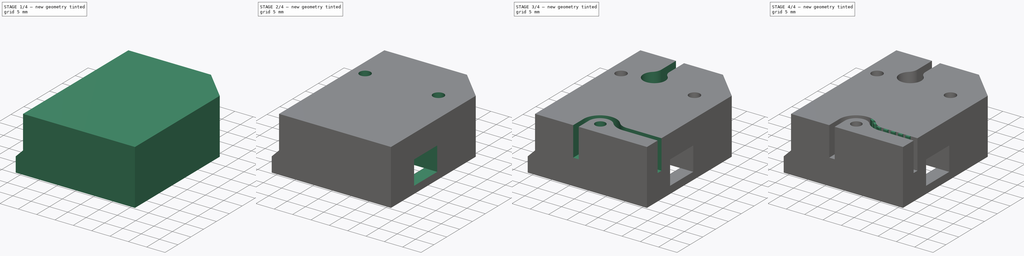
[diagram: build sequence overview — one tinted view per stage of 4, left to right]
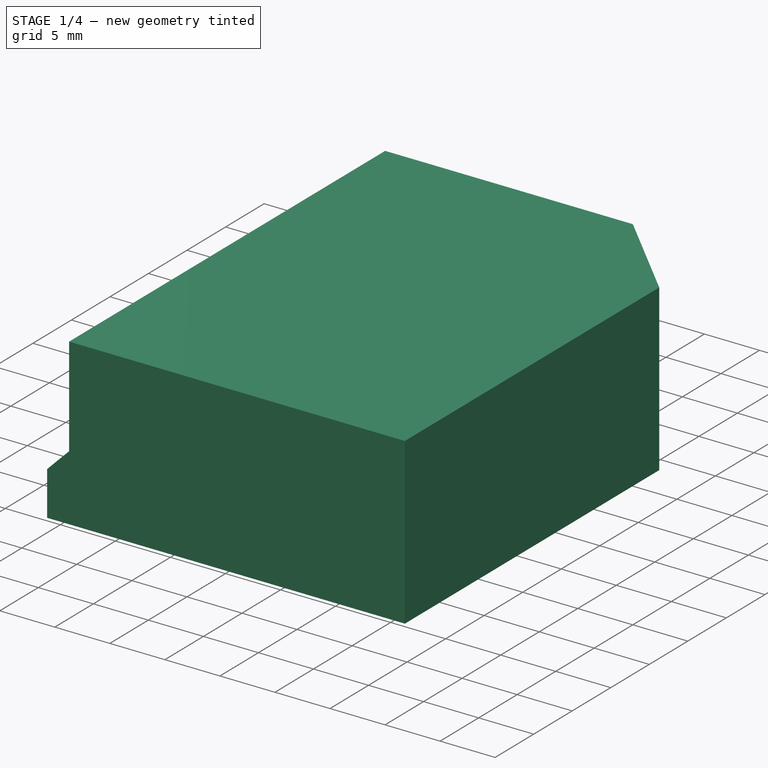
[diagram: stage 1 of 4 — iso view after this stage's code; geometry added in this stage tinted green]
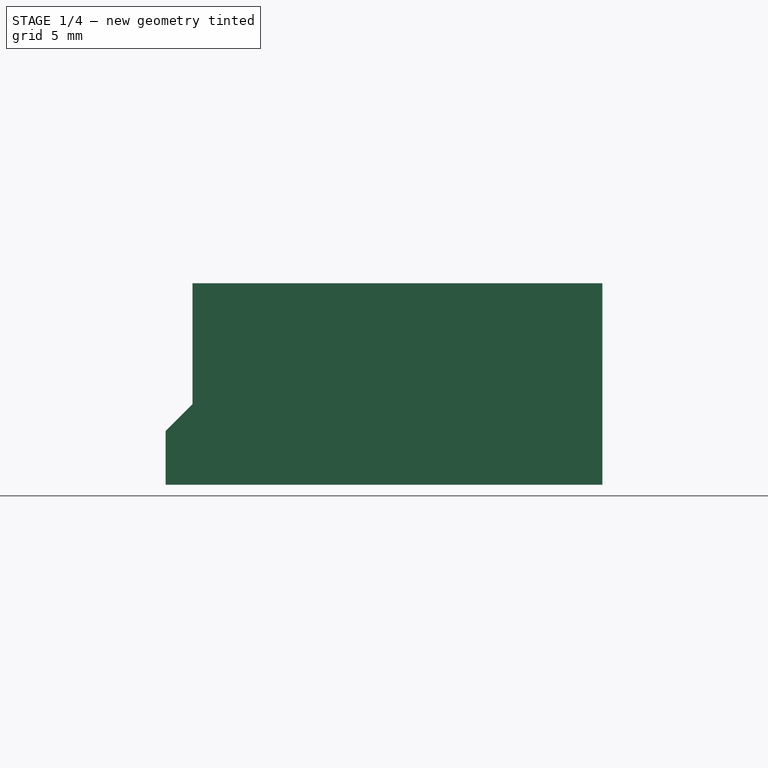
[diagram: stage 1 of 4 — front view after this stage's code; geometry added in this stage tinted green]
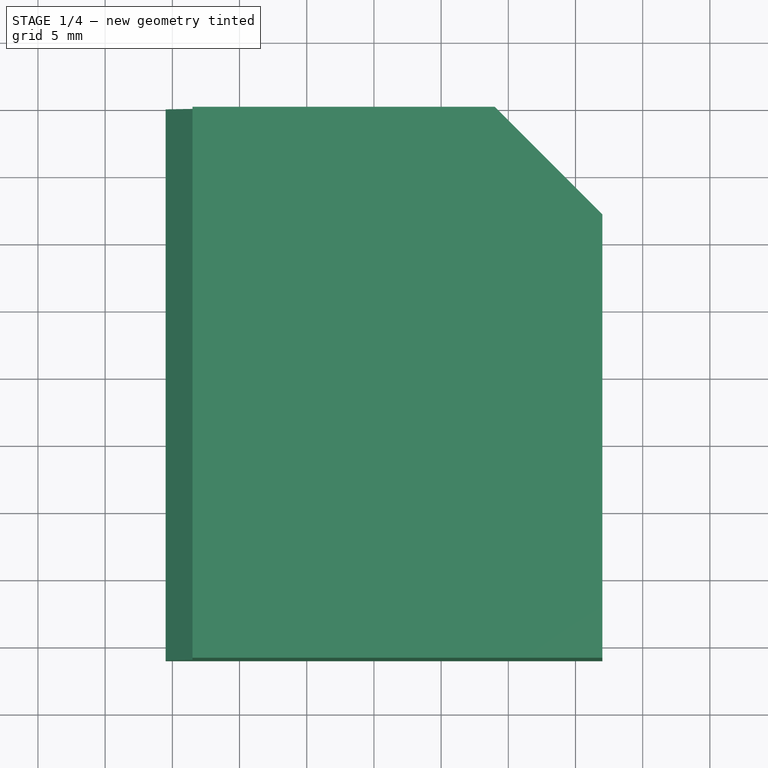
[diagram: stage 1 of 4 — top view after this stage's code; geometry added in this stage tinted green]
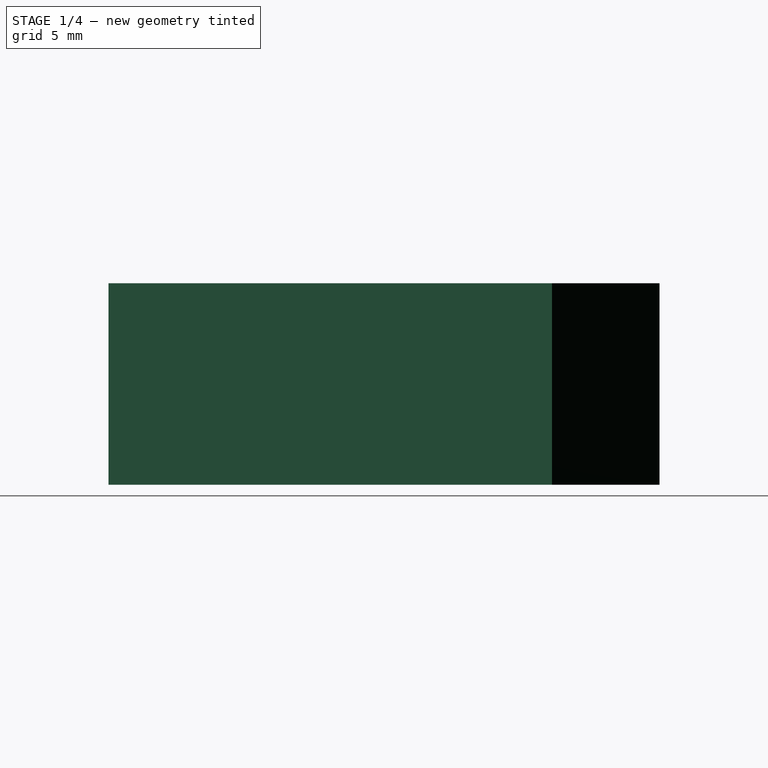
[diagram: stage 1 of 4 — right view after this stage's code; geometry added in this stage tinted green]
FCSTD DOCUMENT  (FreeCAD 0.19R)
Label: Yjoint_bolted_2
License: All rights reserved
LicenseURL: http://en.wikipedia.org/wiki/All_rights_reserved
objects: Sketcher::SketchObject×11, PartDesign::Pocket×8, PartDesign::Pad×2, PartDesign::Body×1
note: 32 computed .brp shape members not serialized (recipe doc carries the construction recipe); baked Part::Feature solids carry a one-line shape summary decoded from their .brp

FEATURE [Sketcher::SketchObject] Sketch
  FullyConstrained = false
  MapMode = 5
  Support = -> [XY_Plane]
  sketch-geometry (10):
    g0: LineSegment StartX=-15.5 StartY=20 StartZ=0 EndX=9 EndY=20 EndZ=0
    g1: LineSegment StartX=17 StartY=12 StartZ=0 EndX=17 EndY=-21 EndZ=0
    g2: LineSegment StartX=17 StartY=-21 StartZ=0 EndX=-15.5 EndY=-21 EndZ=0
    g3: LineSegment StartX=-15.5 StartY=-21 StartZ=0 EndX=-15.5 EndY=20 EndZ=0
    g4: LineSegment StartX=-37.8866 StartY=-3 StartZ=0 EndX=43.1928 EndY=-3 EndZ=0
    g5: LineSegment StartX=43.1928 StartY=-3 StartZ=0 EndX=43.1928 EndY=-12 EndZ=0
    g6: LineSegment StartX=43.1928 StartY=-12 StartZ=0 EndX=-37.8866 EndY=-12 EndZ=0
    g7: LineSegment StartX=-37.8866 StartY=-12 StartZ=0 EndX=-37.8866 EndY=-3 EndZ=0
    g8: LineSegment StartX=-54.8094 StartY=-7.5 StartZ=0 EndX=51.9087 EndY=-7.5 EndZ=0
    g9: LineSegment StartX=9 StartY=20 StartZ=0 EndX=17 EndY=12 EndZ=0
  constraints (26):
    c: Coincident(g1,g2)
    c: Coincident(g2,g3)
    c: Coincident(g3,g0)
    c: Horizontal(g2)
    c: Vertical(g1)
    c: Vertical(g3)
    c: Coincident(g4,g5)
    c: Coincident(g5,g6)
    c: Coincident(g6,g7)
    c: Coincident(g7,g4)
    c: Horizontal(g4)
    c: Horizontal(g6)
    c: Vertical(g5)
    c: Vertical(g7)
    c: DistanceY(g8) = -7.5
    c: Distance(g5) = 9
    c: Distance(g0,g4) = 23
    c: DistanceY(g1) = -21
    c: DistanceX(g2) = -15.5
    c: DistanceX(g1) = 17
    c: Symmetric(g5,g4,g8)
    c: Horizontal(g0)
    c: DistanceY(g9) = 12
    c: Angle(g9) = -0.785398
    c: Coincident(g1,g9)
    c: Coincident(g0,g9)
FEATURE [PartDesign::Pad] Pad
  Direction = (1,1,1)
  Length = 15
  Length2 = 100
  Profile = -> Sketch
  Type = 0
FEATURE [Sketcher::SketchObject] Sketch001  label="beltreleif"
  FullyConstrained = false
  MapMode = 5
  Placement = pos=(0,-21,0) rot=(1,0,0;1.5708rad)
  Support = -> [Pad]
  sketch-geometry (3):
    g0: LineSegment StartX=-23.4183 StartY=-3.91832 StartZ=0 EndX=-13.5 EndY=6 EndZ=0
    g1: LineSegment StartX=-13.5 StartY=6 StartZ=0 EndX=-13.5 EndY=30.99 EndZ=0
    g2: LineSegment StartX=-13.5 StartY=30.99 StartZ=0 EndX=-23.4183 EndY=-3.91832 EndZ=0
  constraints (8):
    c: Coincident(g0,g1)
    c: Vertical(g1)
    c: Coincident(g1,g2)
    c: Coincident(g2,g0)
    c: Angle(g0) = 0.785398
    c: DistanceX(g0) = -13.5
    c: Distance(g2) = 36.29
    c: DistanceY(g0) = 6
FEATURE [Sketcher::SketchObject] Sketch002  label="RailPocket"
  FullyConstrained = false
  MapMode = 5
  Placement = pos=(17,0,0) rot=(0.57735,0.57735,0.57735;2.0944rad)
  sketch-geometry (5):
    g0: LineSegment StartX=-12 StartY=8.5 StartZ=0 EndX=-3 EndY=8.5 EndZ=0
    g1: LineSegment StartX=-3 StartY=8.5 StartZ=0 EndX=-3 EndY=2 EndZ=0
    g2: LineSegment StartX=-3 StartY=2 StartZ=0 EndX=-12 EndY=2 EndZ=0
    g3: LineSegment StartX=-12 StartY=2 StartZ=0 EndX=-12 EndY=8.5 EndZ=0
    g4: LineSegment StartX=-7.5 StartY=9.53875 StartZ=0 EndX=-7.5 EndY=-20.3605 EndZ=0
  constraints (13):
    c: Coincident(g0,g1)
    c: Coincident(g1,g2)
    c: Coincident(g2,g3)
    c: Coincident(g3,g0)
    c: Horizontal(g0)
    c: Horizontal(g2)
    c: Vertical(g1)
    c: Vertical(g3)
    c: Distance(g0) = 9
    c: Symmetric(g0,g0,g4)
    c: DistanceX(g4) = -7.5
    c: DistanceY(g0) = 8.5
    c: Distance(g1) = 6.5
FEATURE [Sketcher::SketchObject] Sketch003  label="CarriageBolts"
  FullyConstrained = true
  MapMode = 5
  Placement = pos=(0,0,15) rot=(0,0,1;0rad)
  sketch-geometry (4):
    g0: Circle CenterX=10 CenterY=7.5 CenterZ=0 NormalX=0 NormalY=0 NormalZ=1 AngleXU=0 Radius=1.5
    g1: Circle CenterX=-10 CenterY=7.5 CenterZ=0 NormalX=0 NormalY=0 NormalZ=1 AngleXU=0 Radius=1.5
    g2: Circle CenterX=-10 CenterY=-7.5 CenterZ=0 NormalX=0 NormalY=0 NormalZ=1 AngleXU=0 Radius=1.5
    g3: Circle CenterX=10 CenterY=-7.5 CenterZ=0 NormalX=0 NormalY=0 NormalZ=1 AngleXU=0 Radius=1.5
  constraints (9):
    c: DistanceY(g0) = 7.5
    c: DistanceX(g0) = 10
    c: Symmetric(g1,g0,g-2)
    c: Symmetric(g0,g2,g-1)
    c: Symmetric(g1,g3,g-1)
    c: Diameter(g0) = 3
    c: Equal(g0,g1)
    c: Equal(g0,g2)
    c: Equal(g0,g3)
FEATURE [Sketcher::SketchObject] Sketch005  label="BottomPocket"
  FullyConstrained = true
  MapMode = 5
  Placement = pos=(0,0,0) rot=(1,0,0;3.14159rad)
  sketch-geometry (4):
    g0: LineSegment StartX=-13.5 StartY=17.5 StartZ=0 EndX=13.5 EndY=17.5 EndZ=0
    g1: LineSegment StartX=13.5 StartY=17.5 StartZ=0 EndX=13.5 EndY=-17.5 EndZ=0
    g2: LineSegment StartX=13.5 StartY=-17.5 StartZ=0 EndX=-13.5 EndY=-17.5 EndZ=0
    g3: LineSegment StartX=-13.5 StartY=-17.5 StartZ=0 EndX=-13.5 EndY=17.5 EndZ=0
  constraints (11):
    c: Coincident(g0,g1)
    c: Coincident(g1,g2)
    c: Coincident(g2,g3)
    c: Coincident(g3,g0)
    c: Horizontal(g2)
    c: Vertical(g1)
    c: Vertical(g3)
    c: Distance(g0) = 27
    c: Distance(g1) = 35
    c: Symmetric(g0,g2,g-1)
    c: Horizontal(g0)
FEATURE [Sketcher::SketchObject] Sketch008  label="printFilm"
  FullyConstrained = false
  MapMode = 5
  Placement = pos=(0,0,6) rot=(0,0,1;0rad)
  sketch-geometry (8):
    g0: LineSegment StartX=-7.42355 StartY=14.214 StartZ=0 EndX=2.97442 EndY=14.214 EndZ=0
    g1: LineSegment StartX=2.97442 StartY=14.214 StartZ=0 EndX=2.97442 EndY=6.02841 EndZ=0
    g2: LineSegment StartX=2.97442 StartY=6.02841 StartZ=0 EndX=-7.42355 EndY=6.02841 EndZ=0
    g3: LineSegment StartX=-7.42355 StartY=6.02841 StartZ=0 EndX=-7.42355 EndY=14.214 EndZ=0
    g4: LineSegment StartX=-5.71547 StartY=-12.14 StartZ=0 EndX=6.63722 EndY=-12.14 EndZ=0
    g5: LineSegment StartX=6.63722 StartY=-12.14 StartZ=0 EndX=6.63722 EndY=-18.9745 EndZ=0
    g6: LineSegment StartX=6.63722 StartY=-18.9745 StartZ=0 EndX=-5.71547 EndY=-18.9745 EndZ=0
    g7: LineSegment StartX=-5.71547 StartY=-18.9745 StartZ=0 EndX=-5.71547 EndY=-12.14 EndZ=0
  constraints (16):
    c: Coincident(g0,g1)
    c: Coincident(g1,g2)
    c: Coincident(g2,g3)
    c: Coincident(g3,g0)
    c: Horizontal(g0)
    c: Horizontal(g2)
    c: Vertical(g1)
    c: Vertical(g3)
    c: Coincident(g4,g5)
    c: Coincident(g5,g6)
    c: Coincident(g6,g7)
    c: Coincident(g7,g4)
    c: Horizontal(g4)
    c: Horizontal(g6)
    c: Vertical(g5)
    c: Vertical(g7)
FEATURE [Sketcher::SketchObject] Sketch012
  FullyConstrained = true
  MapMode = 5
  Placement = pos=(0,0,8.5) rot=(1,0,0;3.14159rad)
  sketch-geometry (2):
    g0: Circle CenterX=10 CenterY=7.5 CenterZ=0 NormalX=0 NormalY=0 NormalZ=1 AngleXU=0 Radius=3.5
    g1: Circle CenterX=-10 CenterY=7.5 CenterZ=0 NormalX=0 NormalY=0 NormalZ=1 AngleXU=0 Radius=3.5
  constraints (6):
    c: Diameter(g0) = 7
    c: Equal(g0,g1)
    c: DistanceY(g1) = 7.5
    c: DistanceY(g0) = 7.5
    c: DistanceX(g1) = -10
    c: DistanceX(g0) = 10
FEATURE [PartDesign::Pocket] Pocket
  BaseFeature = -> Pad
  Length = 5
  Length2 = 100
  Profile = -> Sketch001
  Type = 1
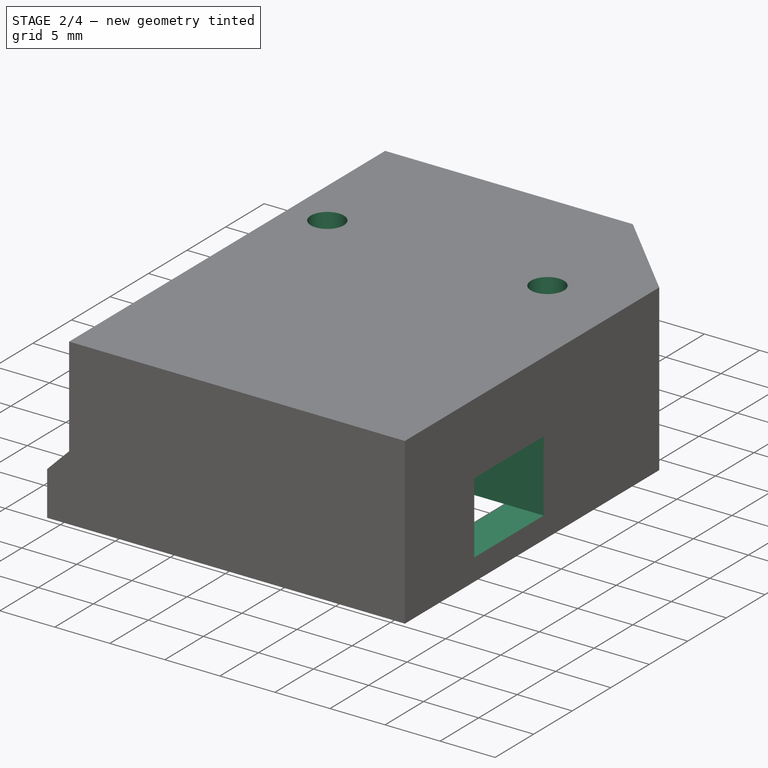
[diagram: stage 2 of 4 — iso view after this stage's code; geometry added in this stage tinted green]
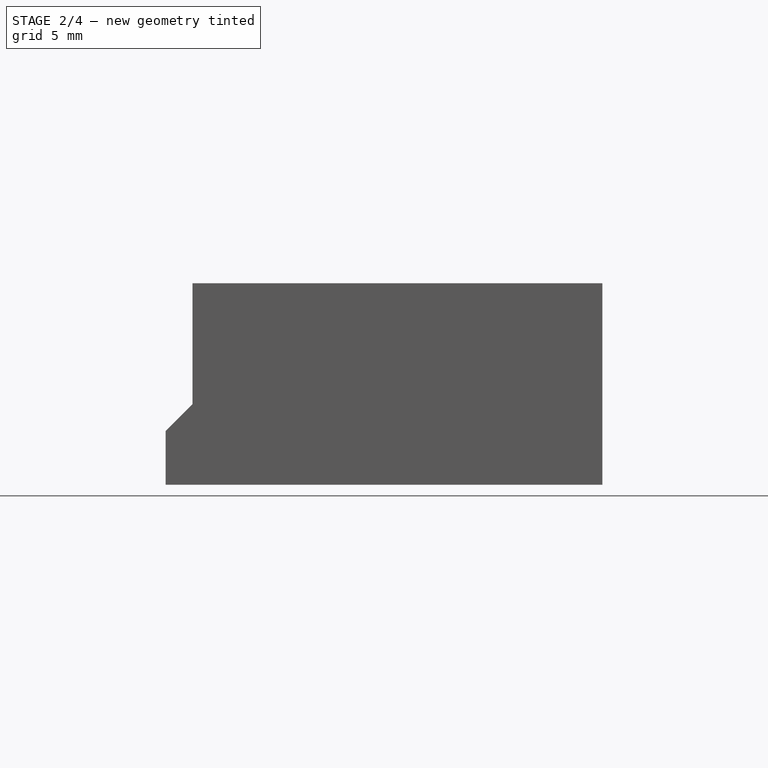
[diagram: stage 2 of 4 — front view after this stage's code; geometry added in this stage tinted green]
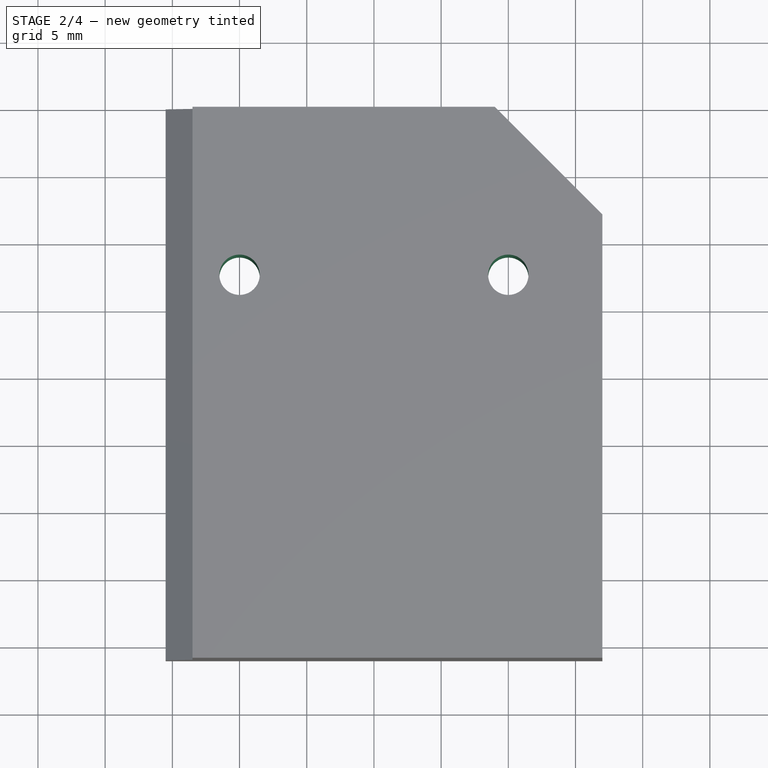
[diagram: stage 2 of 4 — top view after this stage's code; geometry added in this stage tinted green]
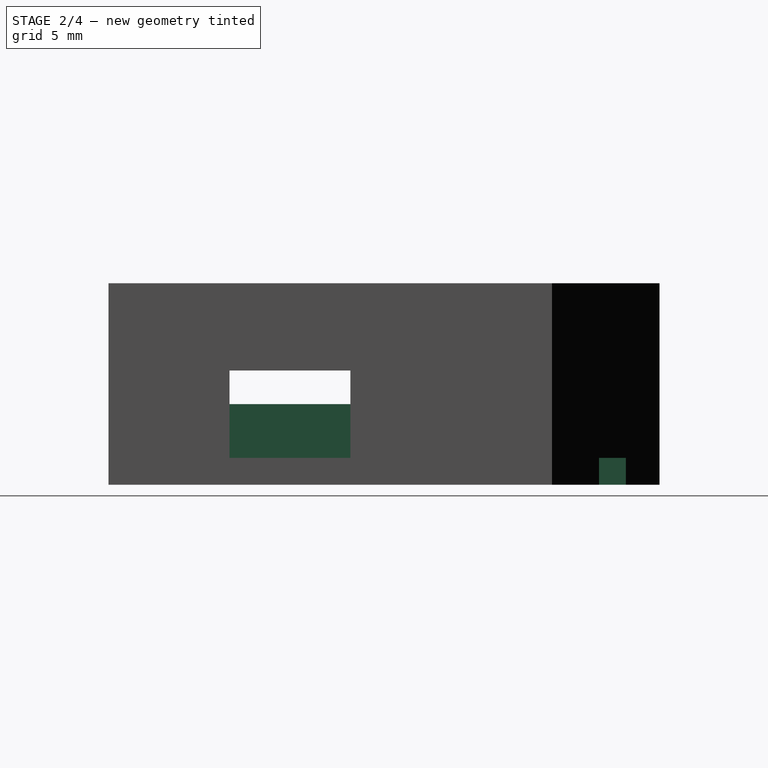
[diagram: stage 2 of 4 — right view after this stage's code; geometry added in this stage tinted green]
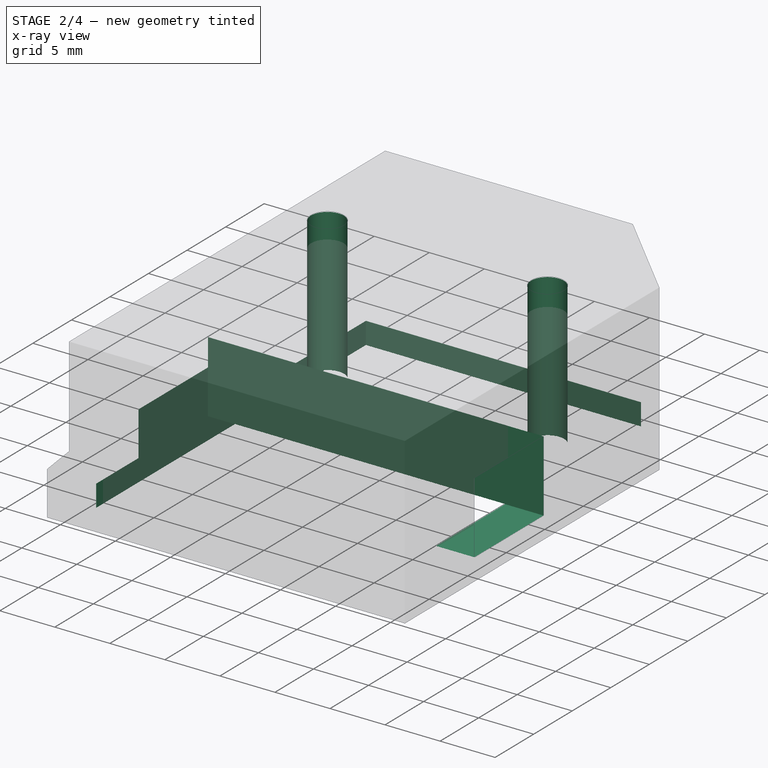
[diagram: stage 2 of 4 — x-ray composite at the iso view; earlier geometry ghosted, this stage's added geometry solid]
FEATURE [PartDesign::Pocket] Pocket001
  BaseFeature = -> Pocket
  Length = 30.5
  Length2 = 100
  Profile = -> Sketch002
  Type = 0
FEATURE [PartDesign::Pocket] Pocket002
  BaseFeature = -> Pocket001
  Length = 5
  Length2 = 100
  Profile = -> Sketch003
  Type = 1
FEATURE [PartDesign::Pocket] Pocket003
  BaseFeature = -> Pocket002
  Length = 2
  Length2 = 100
  Profile = -> Sketch005
  Type = 0
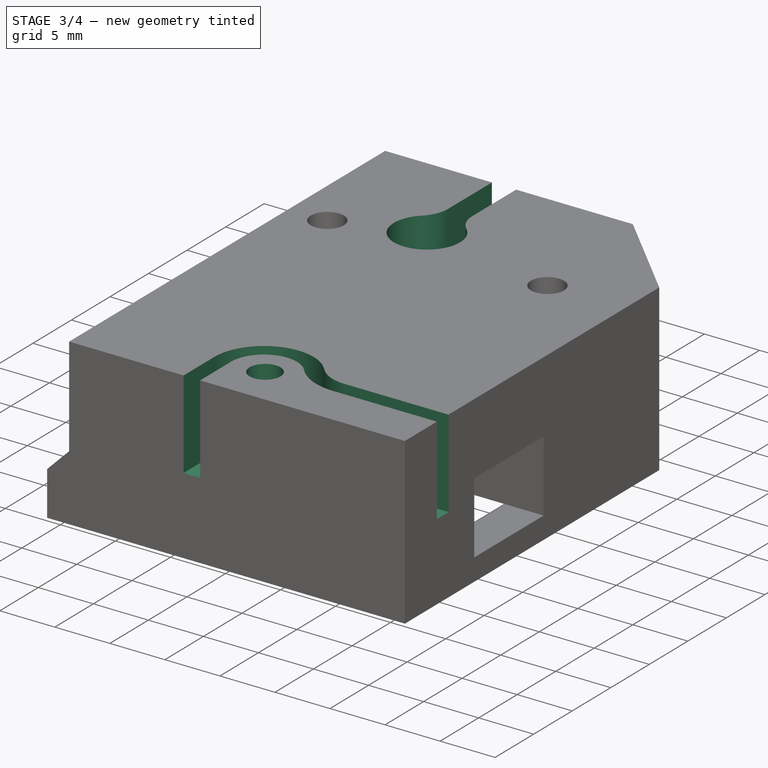
[diagram: stage 3 of 4 — iso view after this stage's code; geometry added in this stage tinted green]
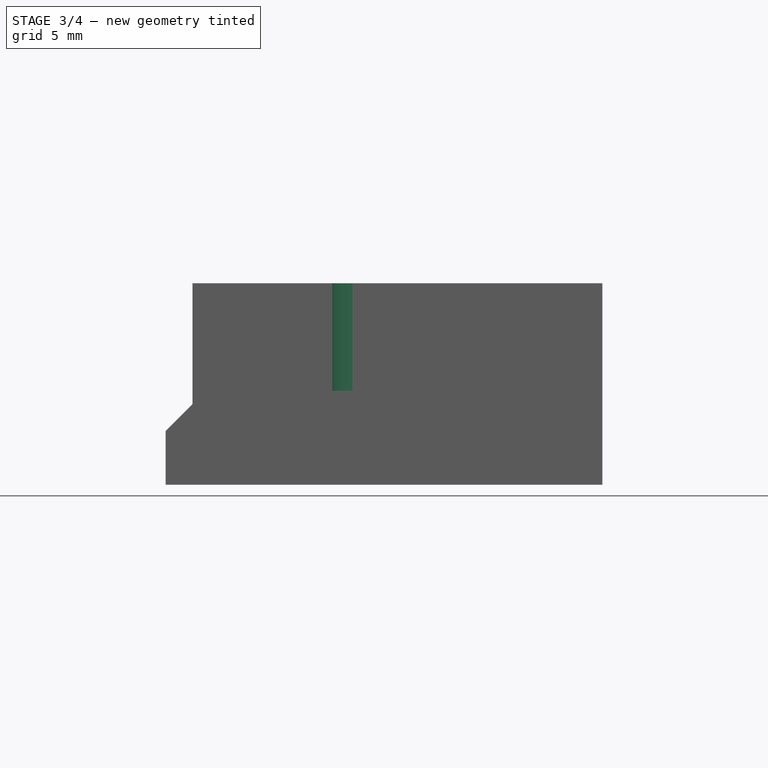
[diagram: stage 3 of 4 — front view after this stage's code; geometry added in this stage tinted green]
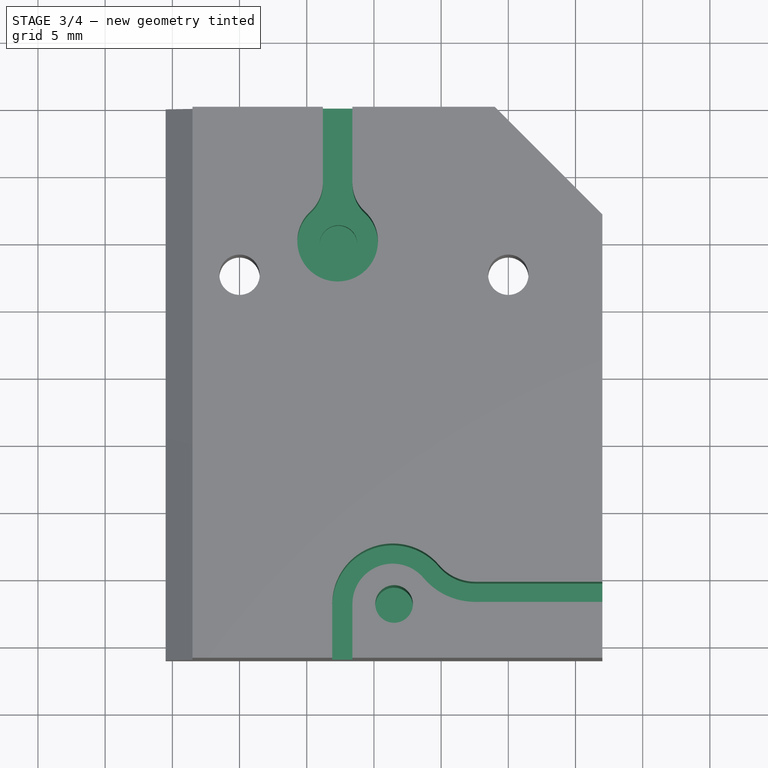
[diagram: stage 3 of 4 — top view after this stage's code; geometry added in this stage tinted green]
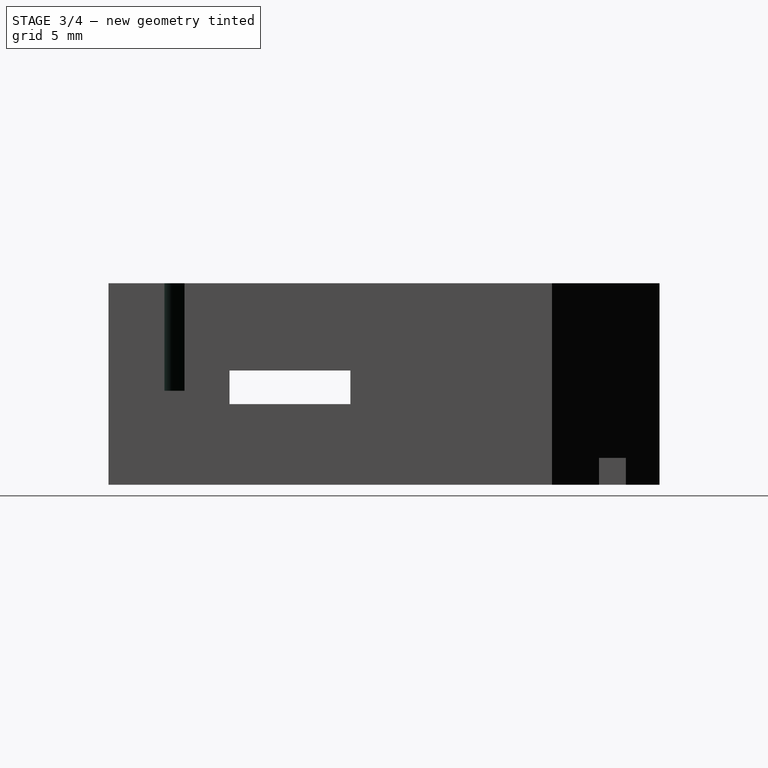
[diagram: stage 3 of 4 — right view after this stage's code; geometry added in this stage tinted green]
FEATURE [Sketcher::SketchObject] Sketch009  label="BeltTrap1"
  FullyConstrained = true
  MapMode = 5
  Placement = pos=(0,0,15) rot=(0,0,1;0rad)
  Support = -> [Pocket003]
  sketch-geometry (12):
    g0: ArcOfCircle CenterX=1.4 CenterY=-17 CenterZ=0 NormalX=0 NormalY=0 NormalZ=1 AngleXU=0 Radius=3 StartAngle=0.70304 EndAngle=3.14159
    g1: ArcOfCircle CenterX=1.4 CenterY=-17 CenterZ=0 NormalX=0 NormalY=0 NormalZ=1 AngleXU=0 Radius=4.5 StartAngle=0.70304 EndAngle=3.14159
    g2: LineSegment StartX=-3.1 StartY=-17 StartZ=0 EndX=-1.6 EndY=-17 EndZ=0
    g3: LineSegment StartX=-1.6 StartY=-17 StartZ=0 EndX=-1.6 EndY=-22 EndZ=0
    g4: LineSegment StartX=-1.6 StartY=-22 StartZ=0 EndX=-3.1 EndY=-22 EndZ=0
    g5: LineSegment StartX=-3.1 StartY=-22 StartZ=0 EndX=-3.1 EndY=-17 EndZ=0
    g6: LineSegment StartX=-4.78 StartY=-17 StartZ=0 EndX=6 EndY=-17 EndZ=0
    g7: ArcOfCircle CenterX=7.5411 CenterY=-11.7954 CenterZ=0 NormalX=0 NormalY=0 NormalZ=1 AngleXU=0 Radius=3.54989 StartAngle=3.84463 EndAngle=4.71239
    g8: ArcOfCircle CenterX=7.5411 CenterY=-11.7954 CenterZ=0 NormalX=0 NormalY=0 NormalZ=1 AngleXU=0 Radius=5.04989 StartAngle=3.84463 EndAngle=4.71239
    g9: LineSegment StartX=21.71 StartY=-15.3453 StartZ=0 EndX=7.5411 EndY=-15.3453 EndZ=0
    g10: LineSegment StartX=21.71 StartY=-16.8453 StartZ=0 EndX=7.5411 EndY=-16.8453 EndZ=0
    g11: LineSegment StartX=21.71 StartY=-15.3453 StartZ=0 EndX=21.71 EndY=-16.8453 EndZ=0
  constraints (34):
    c: Coincident(g1,g0)
    c: Distance(g0,g0) = 3
    c: DistanceX(g0) = 1.4
    c: Coincident(g2,g1)
    c: Coincident(g2,g0)
    c: Tangent(g0,g3) = -1.5708
    c: Coincident(g3,g4)
    c: Horizontal(g4)
    c: Coincident(g4,g5)
    c: Coincident(g5,g1)
    c: Vertical(g5)
    c: Distance(g4) = 1.5
    c: Distance(g3) = 5
    c: Horizontal(g6)
    c: PointOnObject(g0,g6)
    c: PointOnObject(g1,g6)
    c: Parallel(g3,g5)
    c: DistanceY(g6) = -17
    c: Distance(g6) = 10.78
    c: DistanceX(g6) = -4.78
    c: Coincident(g8,g7)
    c: Tangent(g7,g1) = 1.5708
    c: Tangent(g8,g0) = 1.5708
    c: Tangent(g7,g9) = 1.5708
    c: Coincident(g7,g9)
    c: Tangent(g8,g10) = 1.5708
    c: Parallel(g10,g9)
    c: Horizontal(g9)
    c: Coincident(g11,g9)
    c: Coincident(g11,g10)
    c: Vertical(g11)
    c: DistanceX(g9) = 21.71
    c: DistanceX(g8) = 7.5411
    c: DistanceY(g8) = -16.8453
FEATURE [PartDesign::Pocket] Pocket004
  BaseFeature = -> Pocket003
  Length = 8
  Length2 = 100
  Profile = -> Sketch009
  Type = 0
FEATURE [Sketcher::SketchObject] Sketch007  label="clampHole"
  FullyConstrained = false
  MapMode = 5
  Placement = pos=(0,0,15) rot=(0,0,1;0rad)
  Support = -> [Pocket004]
  sketch-geometry (2):
    g0: Circle CenterX=-2.63724 CenterY=9.92805 CenterZ=0 NormalX=0 NormalY=0 NormalZ=1 AngleXU=0 Radius=1.4
    g1: Circle CenterX=1.5 CenterY=-17 CenterZ=0 NormalX=0 NormalY=0 NormalZ=1 AngleXU=0 Radius=1.4
  constraints (4):
    c: Diameter(g0) = 2.8
    c: Diameter(g1) = 2.8
    c: DistanceY(g1) = -17
    c: DistanceX(g1) = 1.5
FEATURE [PartDesign::Pocket] Pocket005
  BaseFeature = -> Pocket004
  Length = 11
  Length2 = 100
  Profile = -> Sketch007
  Type = 0
FEATURE [Sketcher::SketchObject] Sketch004  label="MotorSideBeltClamp"
  FullyConstrained = false
  MapMode = 5
  Placement = pos=(0,0,15) rot=(0,0,1;0rad)
  Support = -> [Pocket005]
  sketch-geometry (13):
    g0: LineSegment StartX=-3.8 StartY=-19.337 StartZ=0 EndX=-3.8 EndY=-36 EndZ=0
    g1: LineSegment StartX=-3.8 StartY=-36 StartZ=0 EndX=-1.6 EndY=-36 EndZ=0
    g2: LineSegment StartX=-1.6 StartY=-36 StartZ=0 EndX=-1.6 EndY=-19.337 EndZ=0
    g3: ArcOfCircle CenterX=-2.7 CenterY=-15 CenterZ=0 NormalX=0 NormalY=0 NormalZ=1 AngleXU=0 Radius=3 StartAngle=5.45738 EndAngle=10.2506
    g4: ArcOfCircle CenterX=1.3 CenterY=-19.337 CenterZ=0 NormalX=0 NormalY=0 NormalZ=1 AngleXU=0 Radius=2.9 StartAngle=2.31579 EndAngle=3.14159
    g5: ArcOfCircle CenterX=-6.7 CenterY=-19.337 CenterZ=0 NormalX=0 NormalY=0 NormalZ=1 AngleXU=0 Radius=2.9 StartAngle=6e-16 EndAngle=0.825804
    g6: LineSegment StartX=-2.7 StartY=-15 StartZ=0 EndX=-2.7 EndY=-40.8271 EndZ=0
    g7: LineSegment StartX=-3.8 StartY=23.44 StartZ=0 EndX=-1.6 EndY=23.44 EndZ=0
    g8: LineSegment StartX=-1.6 StartY=23.44 StartZ=0 EndX=-1.6 EndY=14.337 EndZ=0
    g9: LineSegment StartX=-3.8 StartY=23.44 StartZ=0 EndX=-3.8 EndY=14.337 EndZ=0
    g10: ArcOfCircle CenterX=-2.7 CenterY=10 CenterZ=0 NormalX=0 NormalY=0 NormalZ=1 AngleXU=0 Radius=3 StartAngle=2.31579 EndAngle=7.10899
    g11: ArcOfCircle CenterX=1.3 CenterY=14.337 CenterZ=0 NormalX=0 NormalY=0 NormalZ=1 AngleXU=0 Radius=2.9 StartAngle=3.14159 EndAngle=3.9674
    g12: ArcOfCircle CenterX=-6.7 CenterY=14.337 CenterZ=0 NormalX=0 NormalY=0 NormalZ=1 AngleXU=0 Radius=2.9 StartAngle=5.45738 EndAngle=6.28319
  constraints (32):
    c: Vertical(g0)
    c: Coincident(g0,g1)
    c: Horizontal(g1)
    c: Coincident(g1,g2)
    c: Tangent(g4,g3) = 1.5708
    c: Tangent(g4,g2) = 1.5708
    c: Tangent(g5,g3) = 1.5708
    c: Tangent(g5,g0) = 1.5708
    c: Coincident(g6,g3)
    c: Symmetric(g1,g0,g6)
    c: Symmetric(g2,g0,g6)
    c: DistanceX(g3) = -2.7
    c: Diameter(g3) = 6
    c: Distance(g4,g5) = 8
    c: Distance(g1) = 2.2
    c: DistanceY(g3) = -15
    c: DistanceY(g1) = -36
    c: Coincident(g7,g8)
    c: Vertical(g8)
    c: Coincident(g7,g9)
    c: Tangent(g11,g10) = 1.5708
    c: Diameter(g10) = 6
    c: Tangent(g11,g8) = -1.5708
    c: Tangent(g12,g10) = 1.5708
    c: Tangent(g12,g9) = 1.5708
    c: Symmetric(g7,g7,g6)
    c: Distance(g7) = 2.2
    c: PointOnObject(g10,g6)
    c: Symmetric(g8,g9,g6)
    c: Distance(g11,g12) = 8
    c: DistanceY(g10) = 10
    c: DistanceY(g7) = 23.44
FEATURE [PartDesign::Pocket] Pocket006
  BaseFeature = -> Pocket005
  Length = 8
  Length2 = 100
  Profile = -> Sketch004
  Type = 0
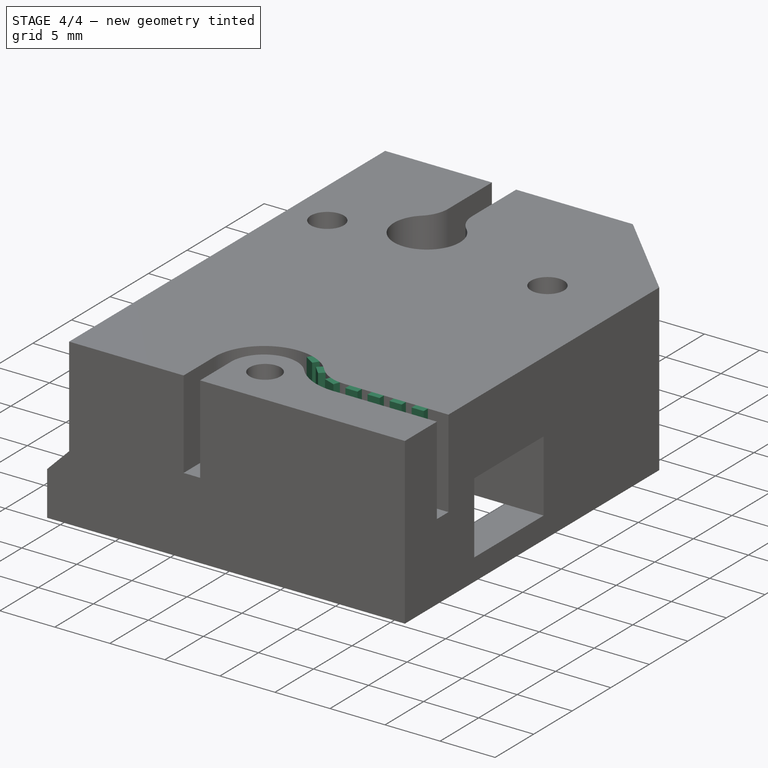
[diagram: stage 4 of 4 — iso view after this stage's code; geometry added in this stage tinted green]
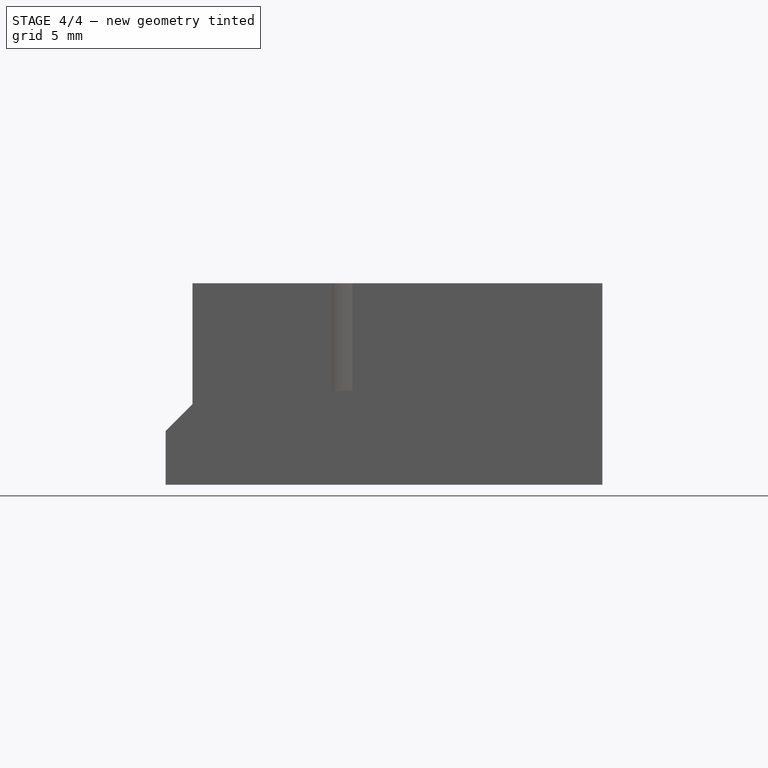
[diagram: stage 4 of 4 — front view after this stage's code; geometry added in this stage tinted green]
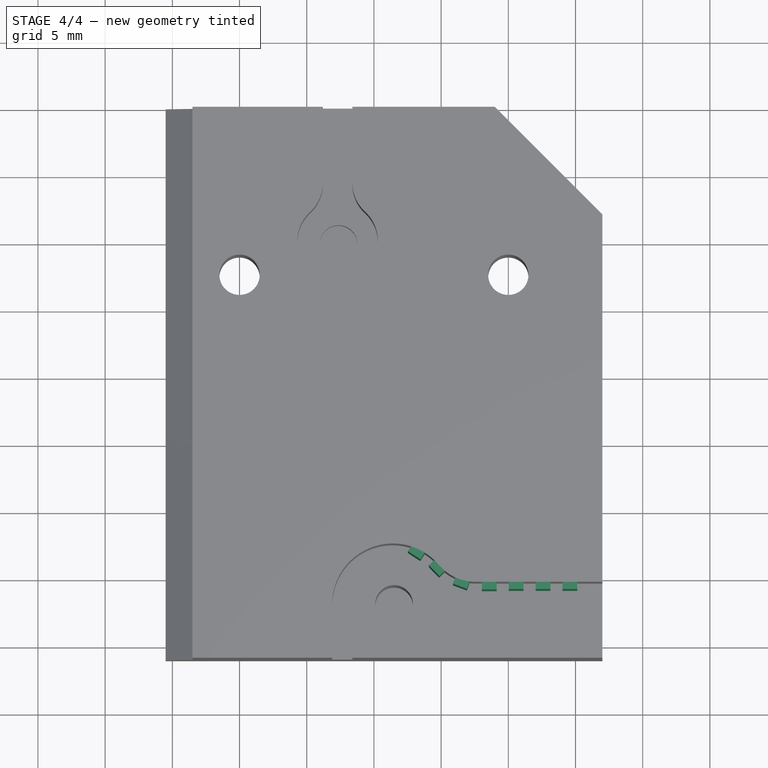
[diagram: stage 4 of 4 — top view after this stage's code; geometry added in this stage tinted green]
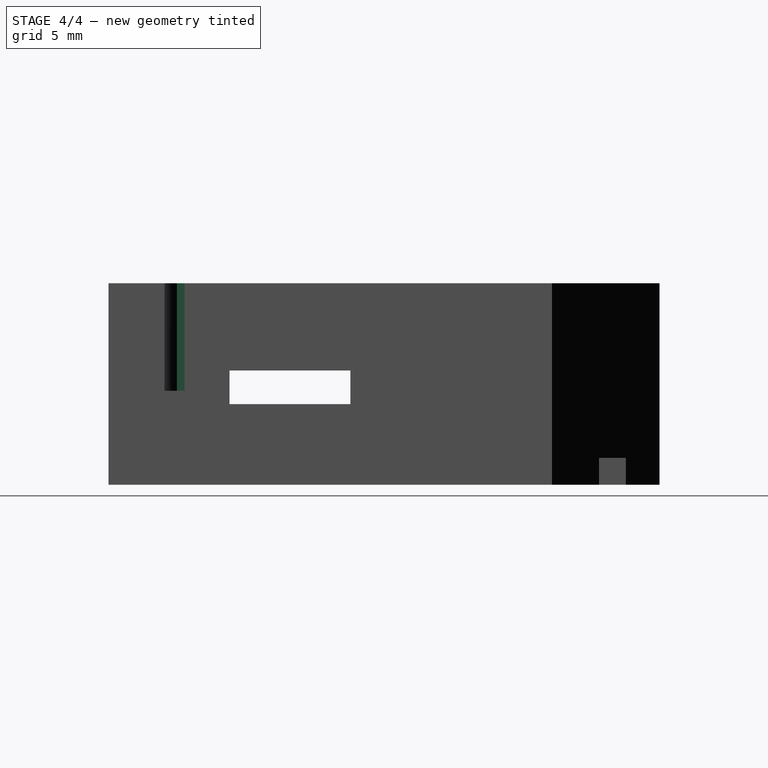
[diagram: stage 4 of 4 — right view after this stage's code; geometry added in this stage tinted green]
FEATURE [Sketcher::SketchObject] Sketch010  label="BeltTeeth"
  FullyConstrained = false
  MapMode = 5
  Placement = pos=(0,0,15) rot=(0,0,1;0rad)
  Support = -> [Pocket006]
  sketch-geometry (36):
    g0: Circle CenterX=3.28997 CenterY=-12.9135 CenterZ=0 NormalX=0 NormalY=0 NormalZ=1 AngleXU=0 Radius=0.625
    g1: Circle CenterX=4.8706 CenterY=-14.1389 CenterZ=0 NormalX=0 NormalY=0 NormalZ=1 AngleXU=0 Radius=0.625
    g2: Circle CenterX=6.59026 CenterY=-15.1601 CenterZ=0 NormalX=0 NormalY=0 NormalZ=1 AngleXU=0 Radius=0.625
    g3: Circle CenterX=8.58014 CenterY=-15.361 CenterZ=0 NormalX=0 NormalY=0 NormalZ=1 AngleXU=0 Radius=0.625
    g4: Circle CenterX=10.58 CenterY=-15.3374 CenterZ=0 NormalX=0 NormalY=0 NormalZ=1 AngleXU=0 Radius=0.625
    g5: Circle CenterX=12.58 CenterY=-15.3373 CenterZ=0 NormalX=0 NormalY=0 NormalZ=1 AngleXU=0 Radius=0.625
    g6: Circle CenterX=14.58 CenterY=-15.3369 CenterZ=0 NormalX=0 NormalY=0 NormalZ=1 AngleXU=0 Radius=0.625
    g7: LineSegment StartX=14.03 StartY=-14.7869 StartZ=0 EndX=14.03 EndY=-15.8869 EndZ=0
    g8: LineSegment StartX=14.03 StartY=-15.8869 StartZ=0 EndX=15.13 EndY=-15.8869 EndZ=0
    g9: LineSegment StartX=15.13 StartY=-15.8869 StartZ=0 EndX=15.13 EndY=-14.7869 EndZ=0
    g10: LineSegment StartX=15.13 StartY=-14.7869 StartZ=0 EndX=14.03 EndY=-14.7869 EndZ=0
    g11: Circle CenterX=14.58 CenterY=-15.3369 CenterZ=0 NormalX=0 NormalY=0 NormalZ=1 AngleXU=0 Radius=0.25124
    g12: LineSegment StartX=12.03 StartY=-14.7873 StartZ=0 EndX=12.03 EndY=-15.8873 EndZ=0
    g13: LineSegment StartX=12.03 StartY=-15.8873 StartZ=0 EndX=13.13 EndY=-15.8873 EndZ=0
    g14: LineSegment StartX=13.13 StartY=-15.8873 StartZ=0 EndX=13.13 EndY=-14.7873 EndZ=0
    g15: LineSegment StartX=13.13 StartY=-14.7873 StartZ=0 EndX=12.03 EndY=-14.7873 EndZ=0
    g16: LineSegment StartX=10.03 StartY=-14.7874 StartZ=0 EndX=11.13 EndY=-14.7874 EndZ=0
    g17: LineSegment StartX=11.13 StartY=-14.7874 StartZ=0 EndX=11.13 EndY=-15.8874 EndZ=0
    g18: LineSegment StartX=11.13 StartY=-15.8874 StartZ=0 EndX=10.03 EndY=-15.8874 EndZ=0
    g19: LineSegment StartX=10.03 StartY=-15.8874 StartZ=0 EndX=10.03 EndY=-14.7874 EndZ=0
    g20: LineSegment StartX=9.13014 StartY=-14.811 StartZ=0 EndX=9.13014 EndY=-15.911 EndZ=0
    g21: LineSegment StartX=9.13014 StartY=-15.911 StartZ=0 EndX=8.03014 EndY=-15.911 EndZ=0
    g22: LineSegment StartX=8.03014 StartY=-15.911 StartZ=0 EndX=8.03014 EndY=-14.811 EndZ=0
    g23: LineSegment StartX=8.03014 StartY=-14.811 StartZ=0 EndX=9.13014 EndY=-14.811 EndZ=0
    g24: LineSegment StartX=6.91605 StartY=-15.8664 StartZ=0 EndX=7.29656 EndY=-14.8343 EndZ=0
    g25: LineSegment StartX=7.29656 StartY=-14.8343 StartZ=0 EndX=6.26447 EndY=-14.4538 EndZ=0
    g26: LineSegment StartX=6.26447 StartY=-14.4538 StartZ=0 EndX=5.88396 EndY=-15.4859 EndZ=0
    g27: LineSegment StartX=5.88396 StartY=-15.4859 StartZ=0 EndX=6.91605 EndY=-15.8664 EndZ=0
    g28: LineSegment StartX=4.09296 StartY=-14.1223 StartZ=0 EndX=4.85395 EndY=-14.9166 EndZ=0
    g29: LineSegment StartX=4.85395 StartY=-14.9166 StartZ=0 EndX=5.64824 EndY=-14.1556 EndZ=0
    g30: LineSegment StartX=5.64824 StartY=-14.1556 StartZ=0 EndX=4.88725 EndY=-13.3613 EndZ=0
    g31: LineSegment StartX=4.88725 StartY=-13.3613 StartZ=0 EndX=4.09296 EndY=-14.1223 EndZ=0
    g32: LineSegment StartX=2.5289 StartY=-13.0741 StartZ=0 EndX=3.45055 EndY=-13.6746 EndZ=0
    g33: LineSegment StartX=3.45055 StartY=-13.6746 StartZ=0 EndX=4.05103 EndY=-12.7529 EndZ=0
    g34: LineSegment StartX=4.05103 StartY=-12.7529 StartZ=0 EndX=3.12938 EndY=-12.1525 EndZ=0
    g35: LineSegment StartX=3.12938 StartY=-12.1525 StartZ=0 EndX=2.5289 EndY=-13.0741 EndZ=0
  constraints (87):
    c: Distance(g0,g1) = 2
    c: Distance(g1,g2) = 2
    c: Distance(g2,g3) = 2
    c: Distance(g4,g5) = 2
    c: Distance(g4,g3) = 2
    c: Distance(g6,g5) = 2
    c: DistanceX(g6) = 14.58
    c: Diameter(g6) = 1.25
    c: Diameter(g0) = 1.25
    c: Equal(g0, g1-g5) x5
    c: Coincident(g7,g8)
    c: Coincident(g8,g9)
    c: Coincident(g9,g10)
    c: Coincident(g10,g7)
    c: Equal(g8,g9)
    c: Equal(g10,g9)
    c: Equal(g10,g7)
    c: Perpendicular(g10,g7)
    c: Symmetric(g7,g9,g11)
    c: Horizontal(g8)
    c: Coincident(g11,g6)
    c: Vertical(g12)
    c: Coincident(g12,g13)
    c: Horizontal(g13)
    c: Coincident(g13,g14)
    c: Coincident(g14,g15)
    c: Coincident(g15,g12)
    c: Equal(g12,g15)
    c: Symmetric(g12,g14,g5)
    c: Horizontal(g16)
    c: Coincident(g16,g17)
    c: Coincident(g17,g18)
    c: Coincident(g18,g19)
    c: Coincident(g19,g16)
    c: Vertical(g19)
    c: Coincident(g20,g21)
    c: Coincident(g21,g22)
    c: Coincident(g22,g23)
    c: Coincident(g23,g20)
    c: Coincident(g24,g25)
    c: Coincident(g25,g26)
    c: Coincident(g26,g27)
    c: Coincident(g27,g24)
    c: Coincident(g28,g29)
    c: Coincident(g29,g30)
    c: Coincident(g30,g31)
    c: Coincident(g31,g28)
    c: Coincident(g32,g33)
    c: Coincident(g33,g34)
    c: Coincident(g34,g35)
    c: Coincident(g35,g32)
    c: Equal(g33,g34)
    c: Equal(g34,g32)
    c: Equal(g32,g35)
    c: Equal(g35,g31)
    c: Equal(g31,g28)
    c: Equal(g28,g29)
    c: Equal(g29,g30)
    c: Equal(g30,g26)
    c: Equal(g26,g27)
    c: Equal(g27,g24)
    c: Equal(g24,g25)
    c: Equal(g25,g21)
    c: Equal(g21,g20)
    c: Equal(g20,g23)
    c: Equal(g23,g22)
    c: Equal(g22,g18)
    c: Equal(g18,g19)
    c: Equal(g19,g17)
    c: Equal(g17,g16)
    c: Equal(g16,g15)
    c: Equal(g12,g10)
    c: Perpendicular(g20,g21)
    c: Perpendicular(g24,g27)
    c: Perpendicular(g29,g28)
    c: Perpendicular(g33,g32)
    c: Symmetric(g32,g33,g0)
    c: Symmetric(g26,g24,g2)
    c: Symmetric(g21,g20,g3)
    c: Symmetric(g28,g29,g1)
    c: Horizontal(g21)
    c: Symmetric(g17,g16,g4)
    c: Perpendicular(g14,g13)
    c: Perpendicular(g12,g15)
    c: Distance(g10) = 1.1
    c: DistanceX(g1) = 4.8706
    c: DistanceY(g1) = -14.1389
FEATURE [PartDesign::Pad] Pad001
  BaseFeature = -> Pocket006
  Direction = (1,1,1)
  Length = 8
  Length2 = 100
  Profile = -> Sketch010
  Reversed = true
  Type = 0
FEATURE [PartDesign::Pocket] Pocket007
  BaseFeature = -> Pad001
  Length = 2
  Length2 = 100
  Profile = -> Sketch012
  Type = 0
FEATURE [PartDesign::Body] Body
  Group = -> [Sketch,Pad,Sketch001,Sketch002,Sketch003,Sketch004,Sketch005,Sketch007,Sketch008,Sketch009,Sketch010,Sketch012,Pocket,Pocket001,Pocket002,Pocket003,Pocket004,Pocket005,Pocket006,Pad001,Pocket007]
  Origin = -> Origin
  Tip = -> Pocket007
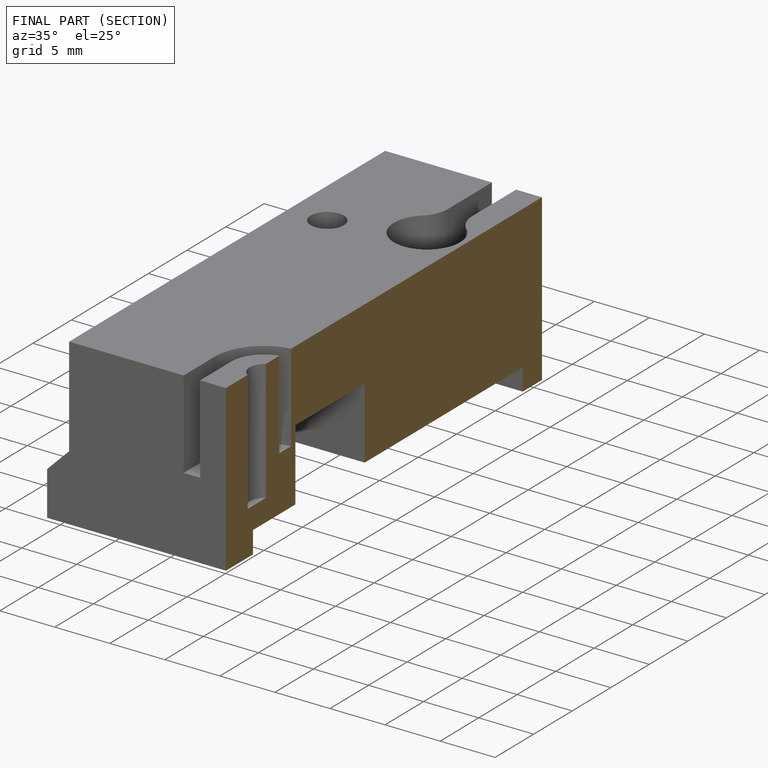
[diagram: finished part — half-section view (interior)]
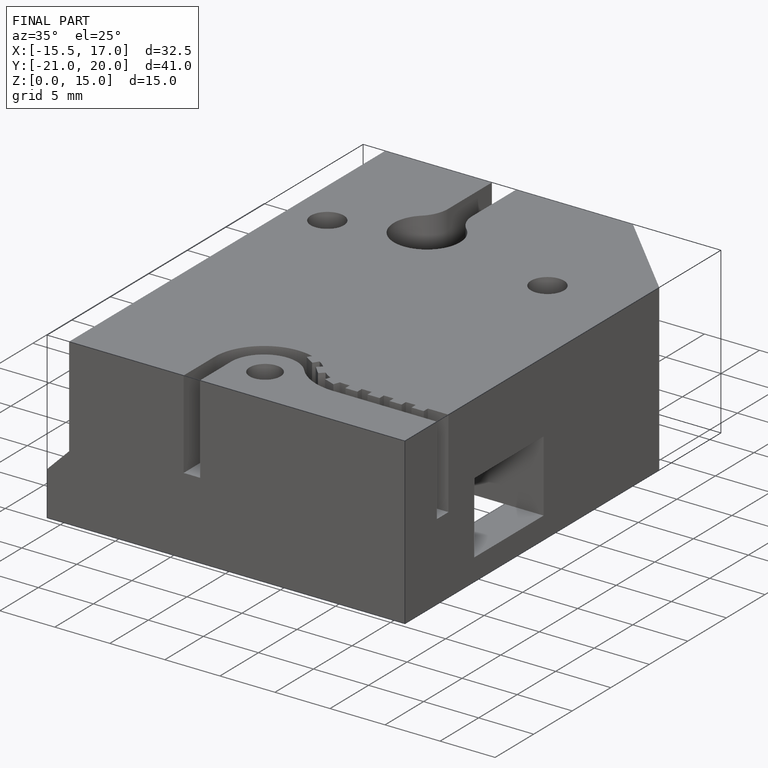
[diagram: finished part — iso view with bounding-box wireframe]
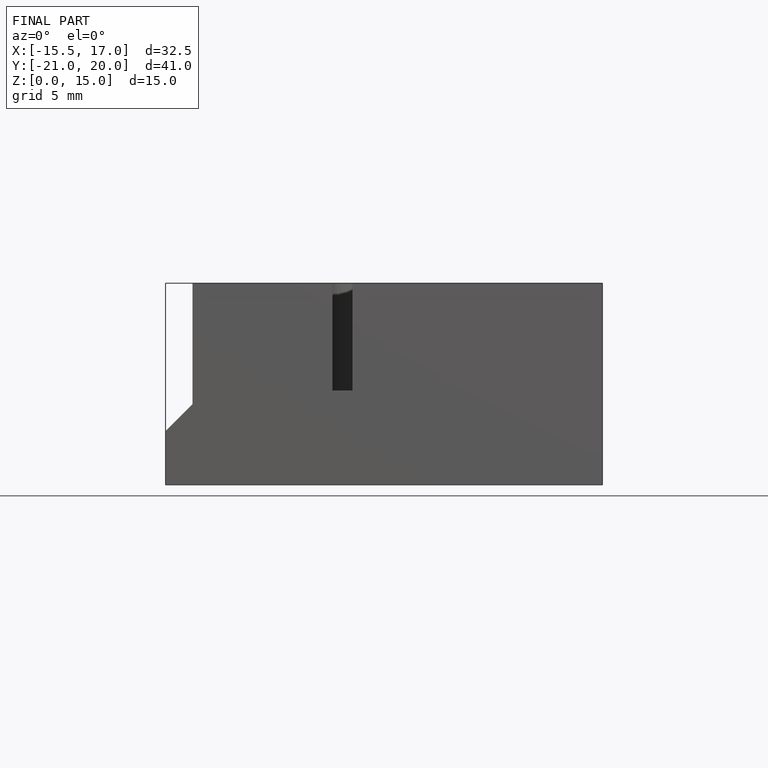
[diagram: finished part — front view with bounding-box wireframe]
